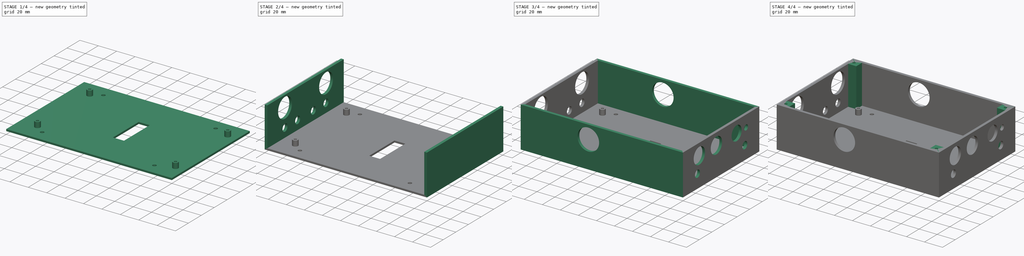
[diagram: build sequence overview — one tinted view per stage of 4, left to right]
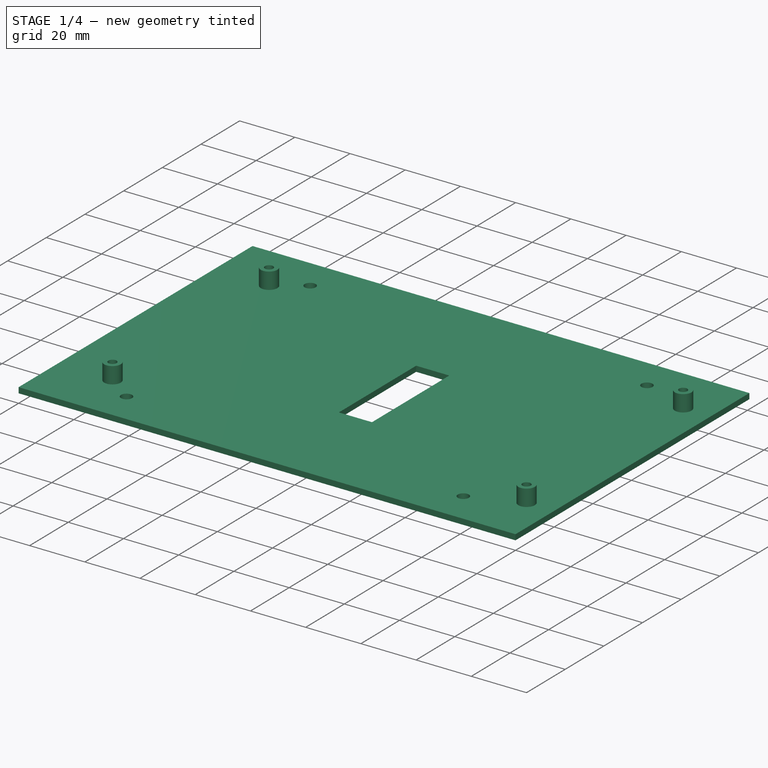
[diagram: stage 1 of 4 — iso view after this stage's code; geometry added in this stage tinted green]
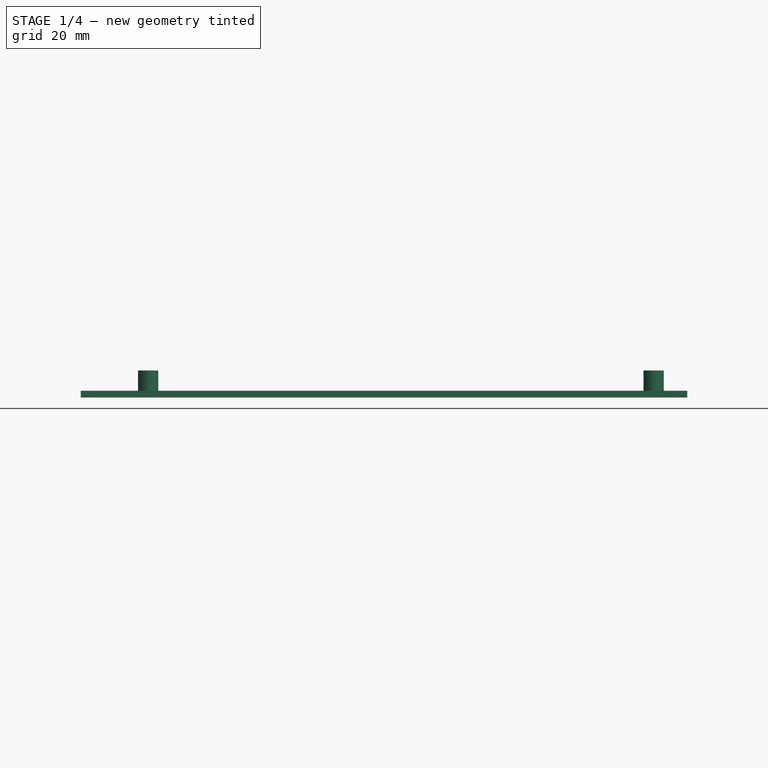
[diagram: stage 1 of 4 — front view after this stage's code; geometry added in this stage tinted green]
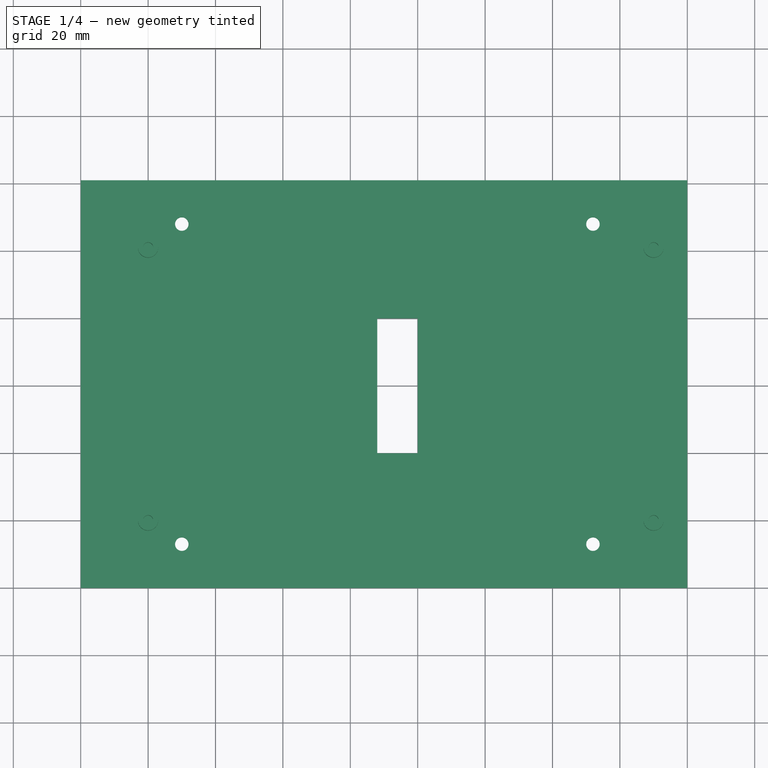
[diagram: stage 1 of 4 — top view after this stage's code; geometry added in this stage tinted green]
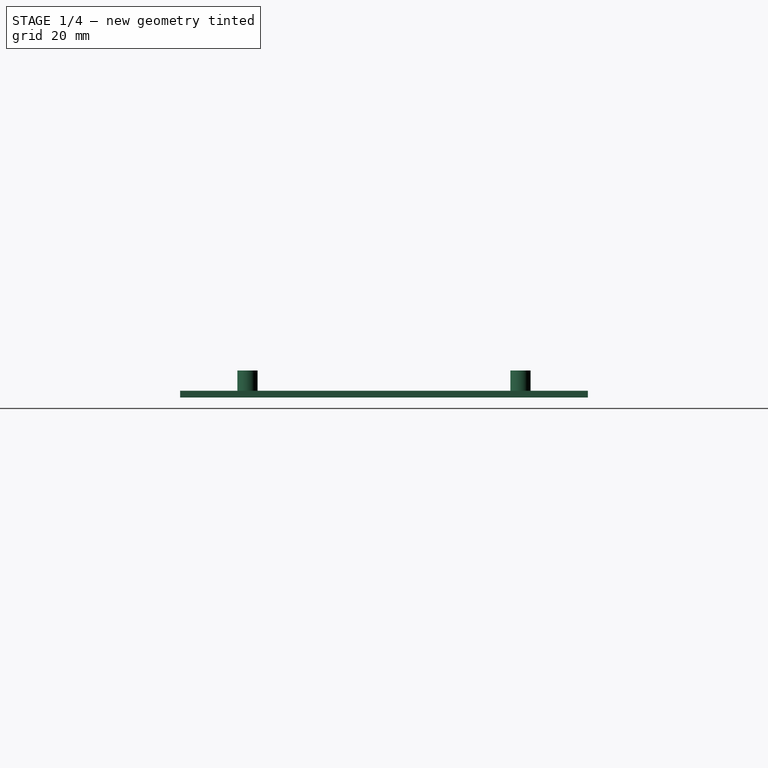
[diagram: stage 1 of 4 — right view after this stage's code; geometry added in this stage tinted green]
FCSTD DOCUMENT  (FreeCAD 0.16R6706 (Git))
Label: Caja_Interior
License: All rights reserved
LicenseURL: http://en.wikipedia.org/wiki/All_rights_reserved
objects: Sketcher::SketchObject×10, PartDesign::Pad×6, PartDesign::Pocket×4
note: 30 computed .brp shape members not serialized (recipe doc carries the construction recipe); baked Part::Feature solids carry a one-line shape summary decoded from their .brp

FEATURE [Sketcher::SketchObject] Sketch  label="Base"
  sketch-geometry (12):
    g0: LineSegment StartX=0 StartY=121 StartZ=0 EndX=180 EndY=121 EndZ=0
    g1: LineSegment StartX=180 StartY=121 StartZ=0 EndX=180 EndY=0 EndZ=0
    g2: LineSegment StartX=180 StartY=0 StartZ=0 EndX=0 EndY=0 EndZ=0
    g3: LineSegment StartX=0 StartY=0 StartZ=0 EndX=0 EndY=121 EndZ=0
    g4: Circle CenterX=30 CenterY=13 CenterZ=0 NormalX=0 NormalY=0 NormalZ=1 Radius=2
    g5: Circle CenterX=152 CenterY=13 CenterZ=0 NormalX=0 NormalY=0 NormalZ=1 Radius=2
    g6: Circle CenterX=30 CenterY=108 CenterZ=0 NormalX=0 NormalY=0 NormalZ=1 Radius=2
    g7: Circle CenterX=152 CenterY=108 CenterZ=0 NormalX=0 NormalY=0 NormalZ=1 Radius=2
    g8: LineSegment StartX=88 StartY=80 StartZ=0 EndX=100 EndY=80 EndZ=0
    g9: LineSegment StartX=100 StartY=80 StartZ=0 EndX=100 EndY=40 EndZ=0
    g10: LineSegment StartX=100 StartY=40 StartZ=0 EndX=88 EndY=40 EndZ=0
    g11: LineSegment StartX=88 StartY=40 StartZ=0 EndX=88 EndY=80 EndZ=0
  constraints (35):
    c: Coincident(g0,g1)
    c: Coincident(g1,g2)
    c: Coincident(g2,g3)
    c: Coincident(g3,g0)
    c: Horizontal(g0)
    c: Horizontal(g2)
    c: Vertical(g1)
    c: Vertical(g3)
    c: DistanceY(g3,g3) = 121
    c: DistanceX(g0,g0) = 180
    c: Coincident(g2,g-1)
    c: Radius(g4) = 2
    c: DistanceY(g-1,g4) = 13
    c: DistanceX(g4,g-1) = -30
    c: Radius(g5) = 2
    c: DistanceX(g5,g4) = -122
    c: DistanceY(g-1,g5) = 13
    c: Radius(g6) = 2
    c: DistanceY(g4,g6) = 95
    c: DistanceX(g-1,g6) = 30
    c: Radius(g7) = 2
    c: DistanceY(g6,g7) = 0
    c: DistanceX(g7,g6) = -122
    c: Coincident(g8,g9)
    c: Coincident(g9,g10)
    c: Coincident(g10,g11)
    c: Coincident(g11,g8)
    c: Horizontal(g8)
    c: Horizontal(g10)
    c: Vertical(g9)
    c: Vertical(g11)
    c: DistanceX(g8,g8) = 12
    c: DistanceY(g11,g11) = 40
    c: DistanceX(g-1,g10) = 88
    c: DistanceY(g-1,g10) = 40
FEATURE [PartDesign::Pad] Pad
  Length = 2
  Length2 = 100
  Sketch = -> Sketch
  Type = 0
FEATURE [Sketcher::SketchObject] Sketch001  label="Soportes_Placa"
  Placement = pos=(0,0,2) rot=(0,0,1;0rad)
  Support = -> Pad [Face14]
  sketch-geometry (8):
    g0: Circle CenterX=20 CenterY=20 CenterZ=0 NormalX=0 NormalY=0 NormalZ=1 Radius=1.5
    g1: Circle CenterX=20 CenterY=20 CenterZ=0 NormalX=0 NormalY=0 NormalZ=1 Radius=3
    g2: Circle CenterX=20 CenterY=101 CenterZ=0 NormalX=0 NormalY=0 NormalZ=1 Radius=1.5
    g3: Circle CenterX=20 CenterY=101 CenterZ=0 NormalX=0 NormalY=0 NormalZ=1 Radius=3
    g4: Circle CenterX=170 CenterY=20 CenterZ=0 NormalX=0 NormalY=0 NormalZ=1 Radius=1.5
    g5: Circle CenterX=170 CenterY=20 CenterZ=0 NormalX=0 NormalY=0 NormalZ=1 Radius=3
    g6: Circle CenterX=170 CenterY=101 CenterZ=0 NormalX=0 NormalY=0 NormalZ=1 Radius=1.5
    g7: Circle CenterX=170 CenterY=101 CenterZ=0 NormalX=0 NormalY=0 NormalZ=1 Radius=3
  constraints (16):
    c: Radius(g0) = 1.5
    c: Radius(g1) = 3
    c: Coincident(g0,g1)
    c: DistanceY(g-1,g0) = 20
    c: DistanceX(g0,g-1) = -20
    c: Radius(g2) = 1.5
    c: Radius(g3) = 3
    c: Coincident(g3,g2)
    c: DistanceY(g0,g2) = 81
    c: Radius(g4) = 1.5
    c: Radius(g5) = 3
    c: Coincident(g5,g4)
    c: DistanceX(g0,g4) = 150
    c: Radius(g6) = 1.5
    c: Radius(g7) = 3
    c: Coincident(g7,g6)
FEATURE [PartDesign::Pad] Pad001
  Length = 6
  Length2 = 100
  Sketch = -> Sketch001
  Type = 0
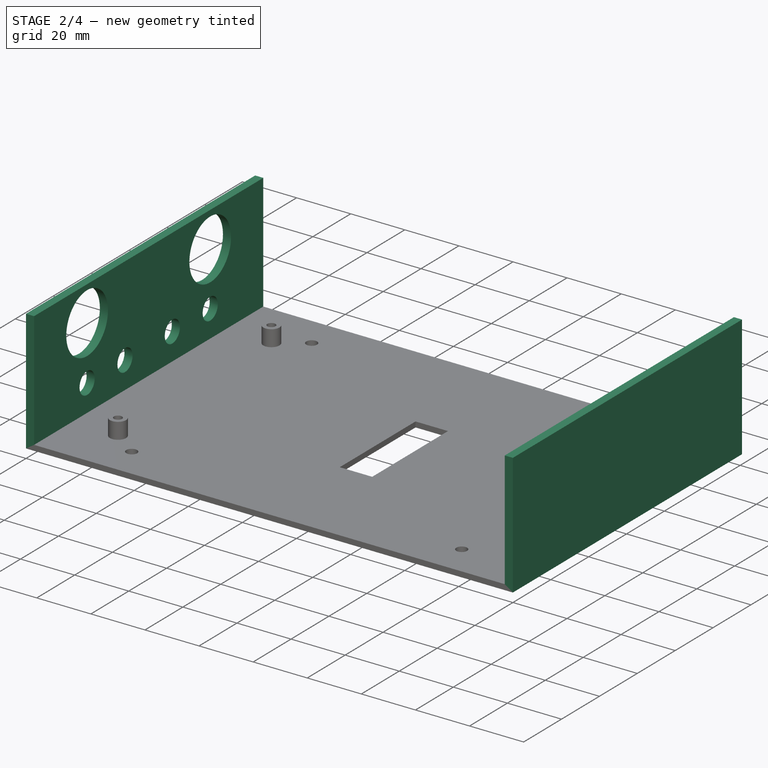
[diagram: stage 2 of 4 — iso view after this stage's code; geometry added in this stage tinted green]
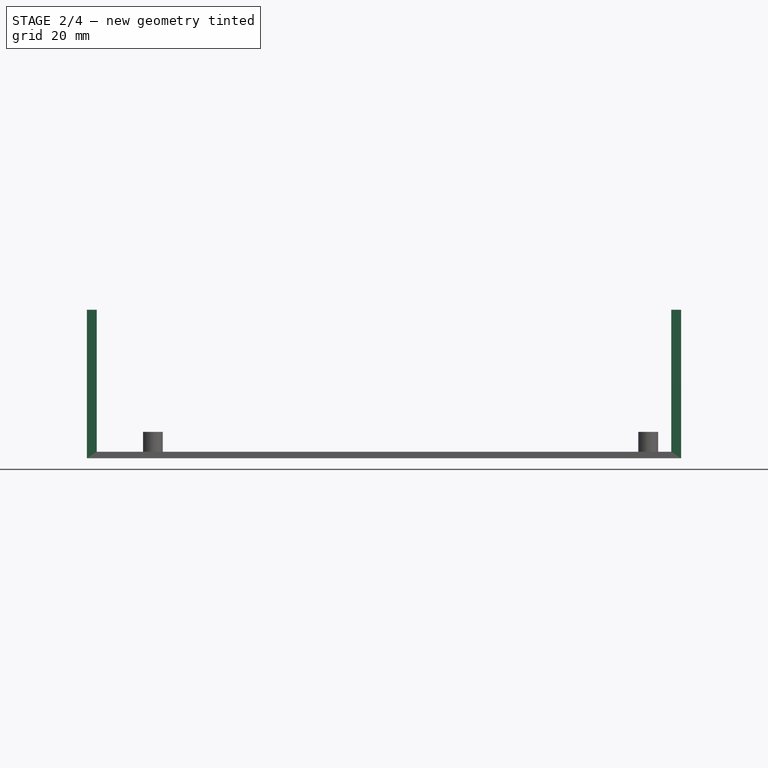
[diagram: stage 2 of 4 — front view after this stage's code; geometry added in this stage tinted green]
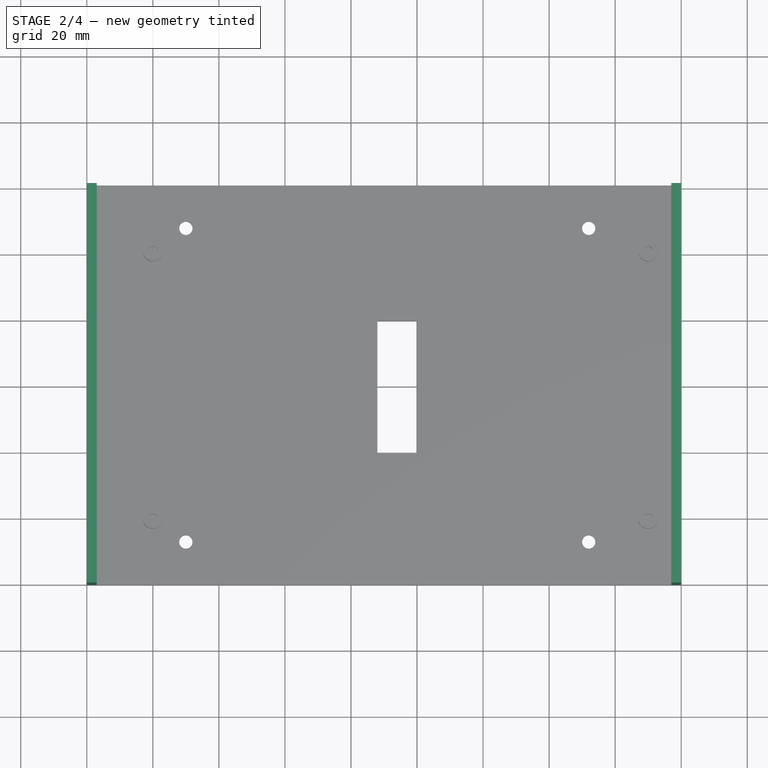
[diagram: stage 2 of 4 — top view after this stage's code; geometry added in this stage tinted green]
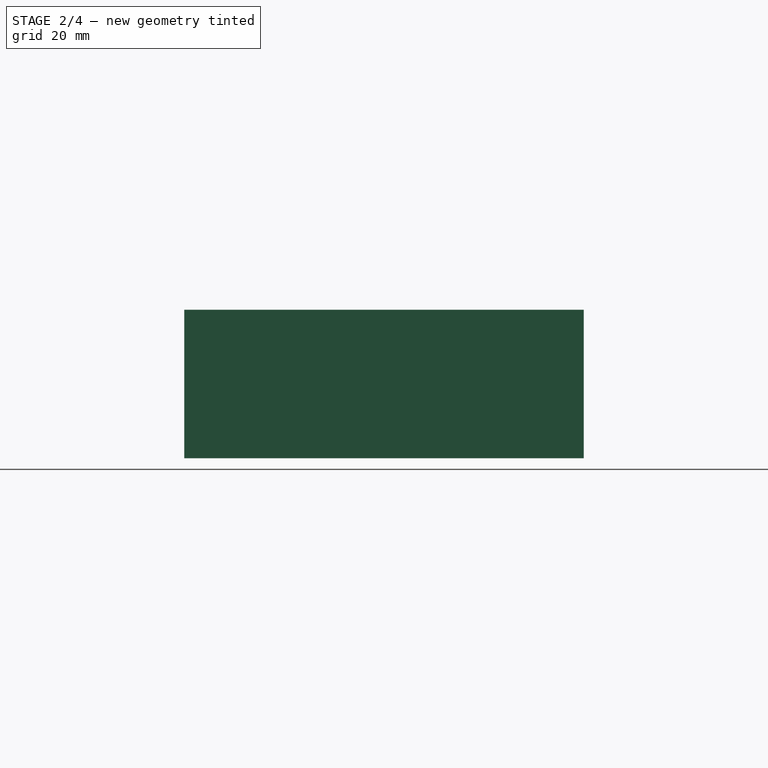
[diagram: stage 2 of 4 — right view after this stage's code; geometry added in this stage tinted green]
FEATURE [Sketcher::SketchObject] Sketch002  label="Frontal"
  Placement = pos=(0,0,2) rot=(0,0,1;0rad)
  Support = -> Pad001 [Face5]
  sketch-geometry (4):
    g0: LineSegment StartX=0 StartY=121 StartZ=0 EndX=3 EndY=121 EndZ=0
    g1: LineSegment StartX=3 StartY=121 StartZ=0 EndX=3 EndY=0 EndZ=0
    g2: LineSegment StartX=3 StartY=0 StartZ=0 EndX=0 EndY=0 EndZ=0
    g3: LineSegment StartX=0 StartY=0 StartZ=0 EndX=0 EndY=121 EndZ=0
  constraints (11):
    c: Coincident(g0,g1)
    c: Coincident(g1,g2)
    c: Coincident(g2,g3)
    c: Coincident(g3,g0)
    c: Horizontal(g0)
    c: Horizontal(g2)
    c: Vertical(g1)
    c: Vertical(g3)
    c: DistanceY(g3,g3) = 121
    c: Coincident(g-1,g2)
    c: DistanceX(g2,g2) = 3
FEATURE [PartDesign::Pad] Pad002
  Length = 43
  Length2 = 100
  Sketch = -> Sketch002
  Type = 0
FEATURE [Sketcher::SketchObject] Sketch003  label="Frontal_Componentes"
  Placement = pos=(0,0,0) rot=(0.57735,-0.57735,-0.57735;2.0944rad)
  Support = -> Pad002 [Face32]
  sketch-geometry (6):
    g0: Circle CenterX=-28 CenterY=32 CenterZ=0 NormalX=0 NormalY=0 NormalZ=1 Radius=11
    g1: Circle CenterX=-93 CenterY=31.799 CenterZ=0 NormalX=0 NormalY=0 NormalZ=1 Radius=11
    g2: Circle CenterX=-28 CenterY=12 CenterZ=0 NormalX=0 NormalY=0 NormalZ=1 Radius=4
    g3: Circle CenterX=-48 CenterY=12 CenterZ=0 NormalX=0 NormalY=0 NormalZ=1 Radius=4
    g4: Circle CenterX=-93 CenterY=12 CenterZ=0 NormalX=0 NormalY=0 NormalZ=1 Radius=4
    g5: Circle CenterX=-73 CenterY=12 CenterZ=0 NormalX=0 NormalY=0 NormalZ=1 Radius=4
  constraints (14):
    c: Radius(g0) = 11
    c: DistanceX(g0,g-1) = 28
    c: DistanceY(g-1,g0) = 32
    c: Radius(g1) = 11
    c: DistanceX(g1,g-1) = 93
    c: Radius(g2) = 4
    c: DistanceY(g-1,g2) = 12
    c: Radius(g3) = 4
    c: DistanceX(g3,g2) = 20
    c: Radius(g4) = 4
    c: DistanceY(g-1,g4) = 12
    c: Radius(g5) = 4
    c: DistanceX(g4,g5) = 20
    c: DistanceY(g-1,g5) = 12
FEATURE [PartDesign::Pocket] Pocket
  Length = 5
  Sketch = -> Sketch003
  Type = 0
FEATURE [Sketcher::SketchObject] Sketch004  label="Trasera"
  Placement = pos=(0,0,2) rot=(0,0,1;0rad)
  Support = -> Pocket [Face16]
  sketch-geometry (4):
    g0: LineSegment StartX=177 StartY=121 StartZ=0 EndX=180 EndY=121 EndZ=0
    g1: LineSegment StartX=180 StartY=121 StartZ=0 EndX=180 EndY=0 EndZ=0
    g2: LineSegment StartX=180 StartY=0 StartZ=0 EndX=177 EndY=0 EndZ=0
    g3: LineSegment StartX=177 StartY=0 StartZ=0 EndX=177 EndY=121 EndZ=0
  constraints (11):
    c: Coincident(g0,g1)
    c: Coincident(g1,g2)
    c: Coincident(g2,g3)
    c: Coincident(g3,g0)
    c: Horizontal(g0)
    c: Horizontal(g2)
    c: Vertical(g1)
    c: Vertical(g3)
    c: DistanceY(g1,g1) = 121
    c: DistanceX(g2,g2) = 3
    c: DistanceX(g1,g-1) = -180
FEATURE [PartDesign::Pad] Pad003
  Length = 43
  Length2 = 100
  Sketch = -> Sketch004
  Type = 0
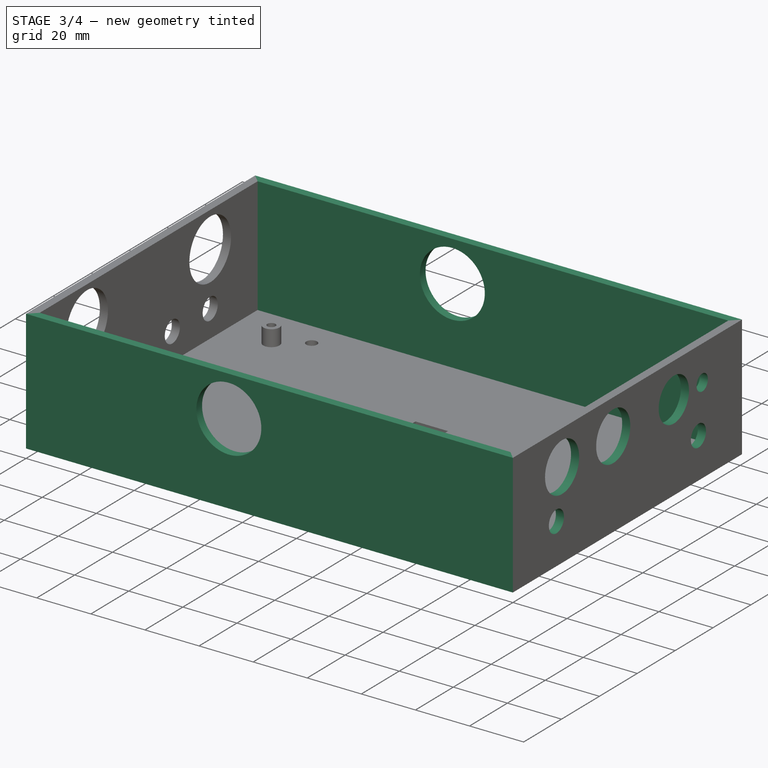
[diagram: stage 3 of 4 — iso view after this stage's code; geometry added in this stage tinted green]
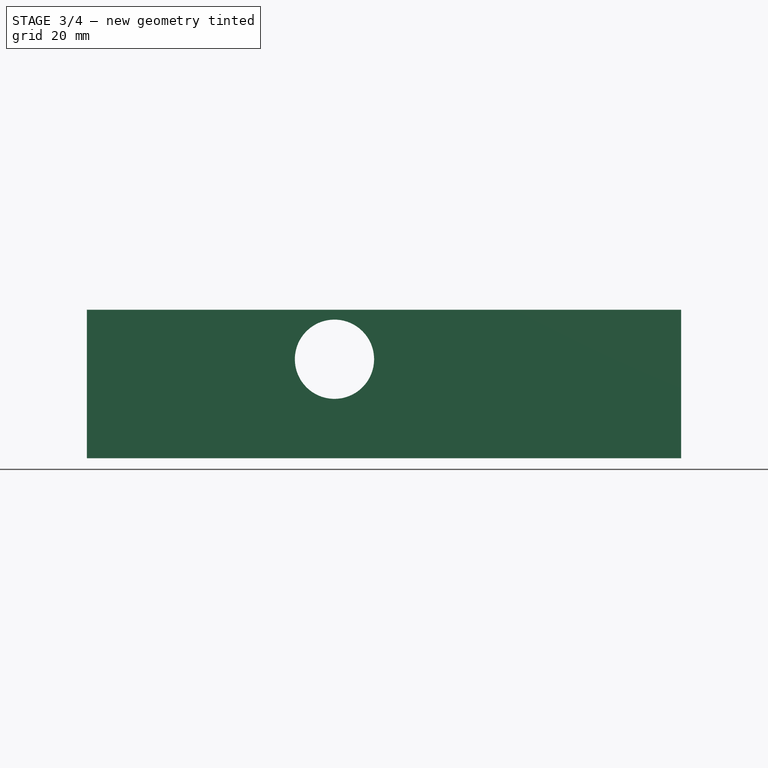
[diagram: stage 3 of 4 — front view after this stage's code; geometry added in this stage tinted green]
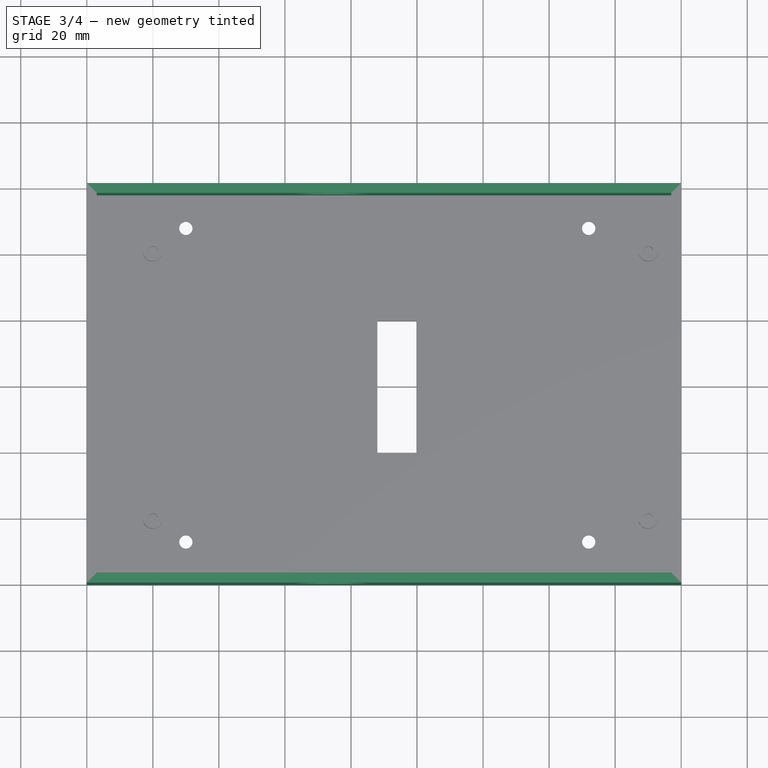
[diagram: stage 3 of 4 — top view after this stage's code; geometry added in this stage tinted green]
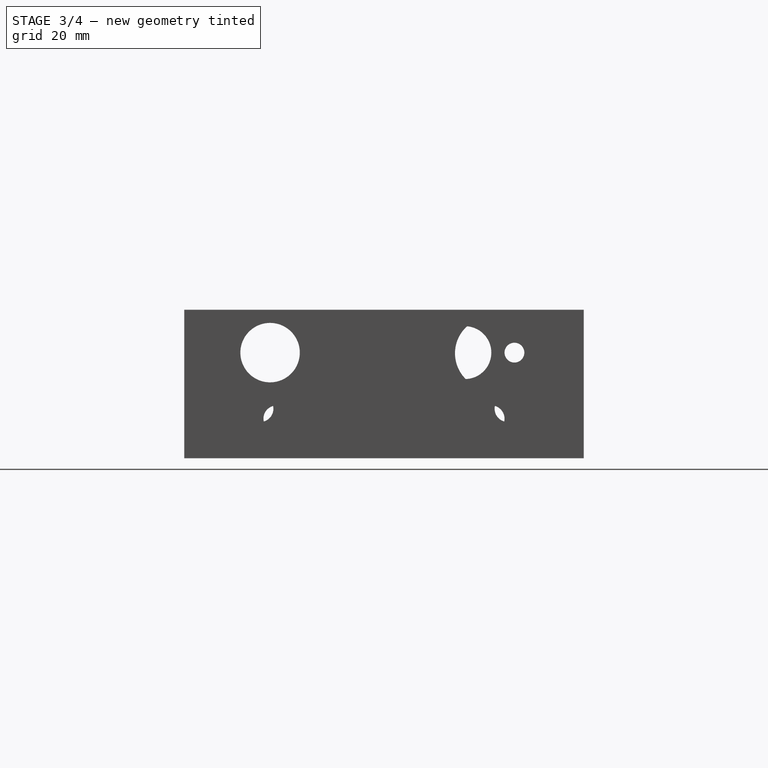
[diagram: stage 3 of 4 — right view after this stage's code; geometry added in this stage tinted green]
FEATURE [Sketcher::SketchObject] Sketch005  label="Trasera_Componentes"
  Placement = pos=(180,0,0) rot=(0.57735,0.57735,0.57735;2.0944rad)
  Support = -> Pad003 [Face39]
  sketch-geometry (6):
    g0: Circle CenterX=85 CenterY=32 CenterZ=0 NormalX=0 NormalY=0 NormalZ=1 Radius=8
    g1: Circle CenterX=26 CenterY=32 CenterZ=0 NormalX=0 NormalY=0 NormalZ=1 Radius=9
    g2: Circle CenterX=53 CenterY=32 CenterZ=0 NormalX=0 NormalY=0 NormalZ=1 Radius=9
    g3: Circle CenterX=23 CenterY=15 CenterZ=0 NormalX=0 NormalY=0 NormalZ=1 Radius=4
    g4: Circle CenterX=98 CenterY=15 CenterZ=0 NormalX=0 NormalY=0 NormalZ=1 Radius=4
    g5: Circle CenterX=100 CenterY=32 CenterZ=0 NormalX=0 NormalY=0 NormalZ=1 Radius=3
  constraints (15):
    c: Radius(g0) = 8
    c: DistanceY(g-1,g0) = 32
    c: DistanceX(g0,g-1) = -85
    c: Radius(g1) = 9
    c: DistanceX(g1,g-1) = -26
    c: Radius(g2) = 9
    c: Radius(g3) = 4
    c: DistanceY(g-1,g3) = 15
    c: DistanceX(g-1,g3) = 23
    c: DistanceY(g-1,g1) = 32
    c: Radius(g4) = 4
    c: DistanceX(g-1,g4) = 98
    c: Radius(g5) = 3
    c: DistanceY(g5,g0) = 0
    c: DistanceX(g0,g5) = 15
FEATURE [PartDesign::Pocket] Pocket001
  Length = 3
  Sketch = -> Sketch005
  Type = 0
FEATURE [Sketcher::SketchObject] Sketch006  label="Laterales"
  Placement = pos=(0,0,2) rot=(0,0,1;0rad)
  Support = -> Pocket001 [Face16]
  sketch-geometry (8):
    g0: LineSegment StartX=3 StartY=3 StartZ=0 EndX=177 EndY=3 EndZ=0
    g1: LineSegment StartX=177 StartY=3 StartZ=0 EndX=177 EndY=0 EndZ=0
    g2: LineSegment StartX=177 StartY=0 StartZ=0 EndX=3 EndY=0 EndZ=0
    g3: LineSegment StartX=3 StartY=0 StartZ=0 EndX=3 EndY=3 EndZ=0
    g4: LineSegment StartX=3 StartY=121 StartZ=0 EndX=177 EndY=121 EndZ=0
    g5: LineSegment StartX=177 StartY=121 StartZ=0 EndX=177 EndY=118 EndZ=0
    g6: LineSegment StartX=177 StartY=118 StartZ=0 EndX=3 EndY=118 EndZ=0
    g7: LineSegment StartX=3 StartY=118 StartZ=0 EndX=3 EndY=121 EndZ=0
  constraints (22):
    c: Coincident(g0,g1)
    c: Coincident(g1,g2)
    c: Coincident(g2,g3)
    c: Coincident(g3,g0)
    c: Horizontal(g0)
    c: Horizontal(g2)
    c: Vertical(g1)
    c: Vertical(g3)
    c: DistanceY(g1,g1) = 3
    c: DistanceX(g0,g0) = 174
    c: DistanceX(g2,g-1) = -3
    c: Coincident(g4,g5)
    c: Coincident(g5,g6)
    c: Coincident(g6,g7)
    c: Coincident(g7,g4)
    c: Horizontal(g4)
    c: Horizontal(g6)
    c: Vertical(g5)
    c: Vertical(g7)
    c: DistanceY(g5,g5) = 3
    c: DistanceX(g4,g4) = 174
    c: DistanceY(g-1,g6) = 118
FEATURE [PartDesign::Pad] Pad004
  Length = 43
  Length2 = 100
  Sketch = -> Sketch006
  Type = 0
FEATURE [Sketcher::SketchObject] Sketch007  label="Motores"
  Placement = pos=(0,121,0) rot=(0,0.707107,0.707107;3.14159rad)
  Support = -> Pad004 [Face45]
  sketch-geometry (1):
    g0: Circle CenterX=-75 CenterY=30 CenterZ=0 NormalX=0 NormalY=0 NormalZ=1 Radius=12
  constraints (3):
    c: Radius(g0) = 12
    c: DistanceY(g-1,g0) = 30
    c: DistanceX(g-1,g0) = -75
FEATURE [PartDesign::Pocket] Pocket002
  Length = 130
  Sketch = -> Sketch007
  Type = 0
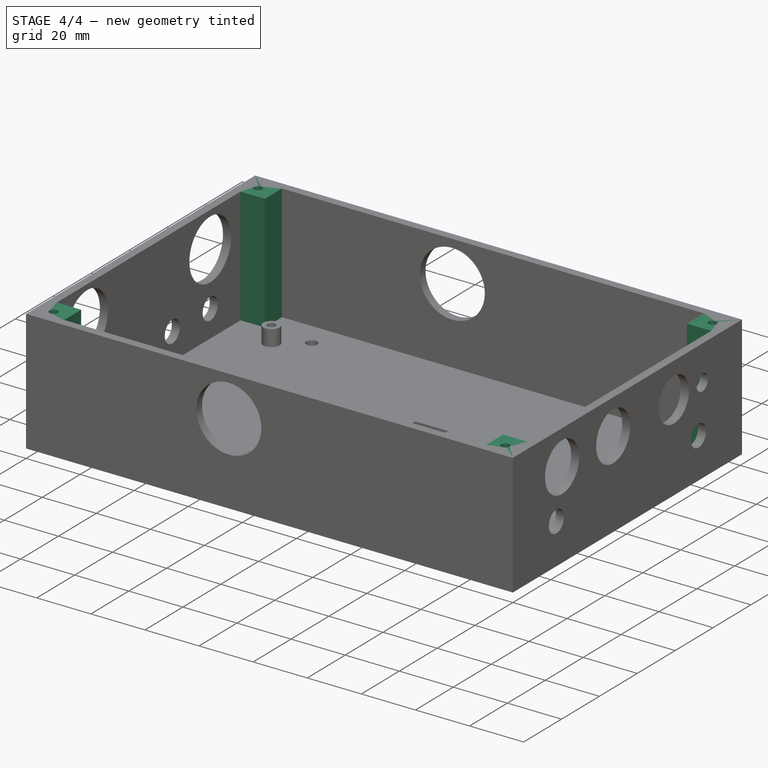
[diagram: stage 4 of 4 — iso view after this stage's code; geometry added in this stage tinted green]
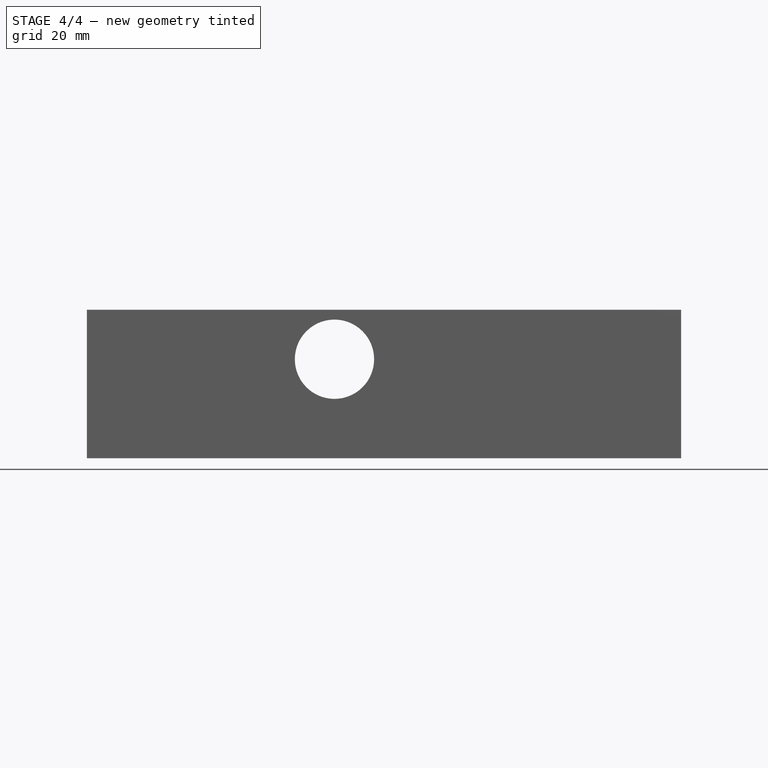
[diagram: stage 4 of 4 — front view after this stage's code; geometry added in this stage tinted green]
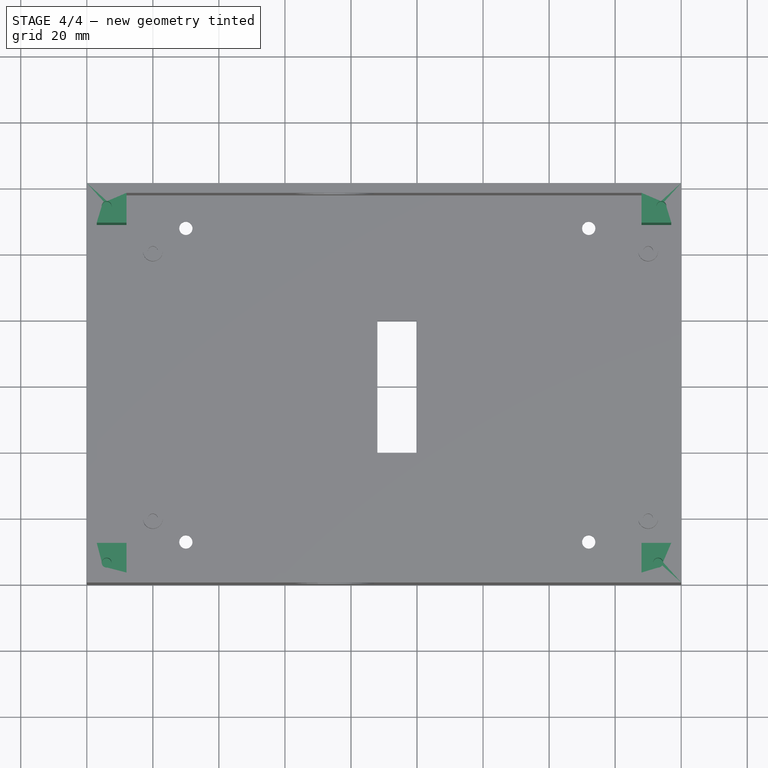
[diagram: stage 4 of 4 — top view after this stage's code; geometry added in this stage tinted green]
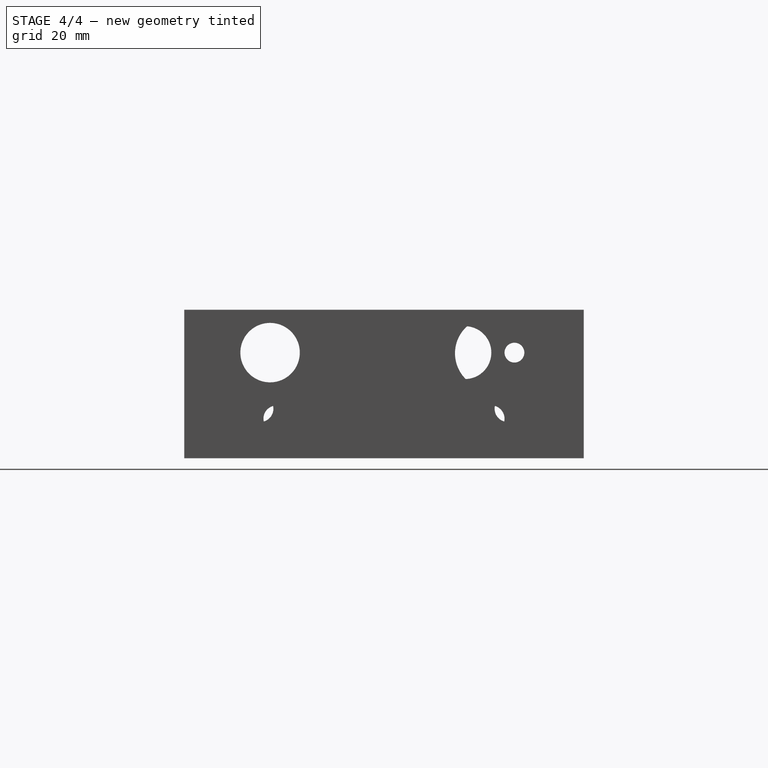
[diagram: stage 4 of 4 — right view after this stage's code; geometry added in this stage tinted green]
FEATURE [Sketcher::SketchObject] Sketch008  label="Columnas_Fijacion_Tapa"
  Placement = pos=(0,0,2) rot=(0,0,1;0rad)
  Support = -> Pocket002 [Face29]
  sketch-geometry (16):
    g0: LineSegment StartX=0 StartY=12 StartZ=0 EndX=12 EndY=12 EndZ=0
    g1: LineSegment StartX=12 StartY=12 StartZ=0 EndX=12 EndY=0 EndZ=0
    g2: LineSegment StartX=12 StartY=0 StartZ=0 EndX=0 EndY=0 EndZ=0
    g3: LineSegment StartX=0 StartY=0 StartZ=0 EndX=0 EndY=12 EndZ=0
    g4: LineSegment StartX=0 StartY=121 StartZ=0 EndX=12 EndY=121 EndZ=0
    g5: LineSegment StartX=12 StartY=121 StartZ=0 EndX=12 EndY=109 EndZ=0
    g6: LineSegment StartX=12 StartY=109 StartZ=0 EndX=0 EndY=109 EndZ=0
    g7: LineSegment StartX=0 StartY=109 StartZ=0 EndX=0 EndY=121 EndZ=0
    g8: LineSegment StartX=168 StartY=121 StartZ=0 EndX=180 EndY=121 EndZ=0
    g9: LineSegment StartX=180 StartY=121 StartZ=0 EndX=180 EndY=109 EndZ=0
    g10: LineSegment StartX=180 StartY=109 StartZ=0 EndX=168 EndY=109 EndZ=0
    g11: LineSegment StartX=168 StartY=109 StartZ=0 EndX=168 EndY=121 EndZ=0
    g12: LineSegment StartX=168 StartY=12 StartZ=0 EndX=180 EndY=12 EndZ=0
    g13: LineSegment StartX=180 StartY=12 StartZ=0 EndX=180 EndY=0 EndZ=0
    g14: LineSegment StartX=180 StartY=0 StartZ=0 EndX=168 EndY=0 EndZ=0
    g15: LineSegment StartX=168 StartY=0 StartZ=0 EndX=168 EndY=12 EndZ=0
  constraints (48):
    c: Coincident(g0,g1)
    c: Coincident(g1,g2)
    c: Coincident(g2,g3)
    c: Coincident(g3,g0)
    c: Horizontal(g0)
    c: Horizontal(g2)
    c: Vertical(g1)
    c: Vertical(g3)
    c: DistanceX(g0,g0) = 12
    c: DistanceY(g3,g3) = 12
    c: DistanceX(g2,g-1) = 0
    c: DistanceY(g-1,g2) = 0
    c: Coincident(g4,g5)
    c: Coincident(g5,g6)
    c: Coincident(g6,g7)
    c: Coincident(g7,g4)
    c: Horizontal(g4)
    c: Horizontal(g6)
    c: Vertical(g5)
    c: Vertical(g7)
    c: DistanceX(g4,g4) = 12
    c: DistanceY(g7,g7) = 12
    c: DistanceX(g6,g-1) = 0
    c: DistanceY(g-1,g6) = 109
    c: Coincident(g8,g9)
    c: Coincident(g9,g10)
    c: Coincident(g10,g11)
    c: Coincident(g11,g8)
    c: Horizontal(g8)
    c: Horizontal(g10)
    c: Vertical(g9)
    c: Vertical(g11)
    c: DistanceX(g8,g8) = 12
    c: DistanceY(g11,g11) = 12
    c: DistanceY(g6,g10) = 0
    c: DistanceX(g6,g10) = 168
    c: Coincident(g12,g13)
    c: Coincident(g13,g14)
    c: Coincident(g14,g15)
    c: Coincident(g15,g12)
    c: Horizontal(g12)
    c: Horizontal(g14)
    c: Vertical(g13)
    c: Vertical(g15)
    c: DistanceX(g12,g12) = 12
    c: DistanceY(g15,g15) = 12
    c: DistanceY(g-1,g14) = 0
    c: DistanceX(g-1,g14) = 168
FEATURE [PartDesign::Pad] Pad005
  Length = 43
  Length2 = 100
  Sketch = -> Sketch008
  Type = 0
FEATURE [Sketcher::SketchObject] Sketch009  label="Columnas_Fijacion_Tapa_tornillos"
  Placement = pos=(0,0,45) rot=(0,0,1;0rad)
  Support = -> Pad005 [Face57]
  sketch-geometry (4):
    g0: Circle CenterX=6 CenterY=6 CenterZ=0 NormalX=0 NormalY=0 NormalZ=1 Radius=1.5
    g1: Circle CenterX=173 CenterY=6 CenterZ=0 NormalX=0 NormalY=0 NormalZ=1 Radius=1.5
    g2: Circle CenterX=6 CenterY=114 CenterZ=0 NormalX=0 NormalY=0 NormalZ=1 Radius=1.5
    g3: Circle CenterX=174 CenterY=114 CenterZ=0 NormalX=0 NormalY=0 NormalZ=1 Radius=1.5
  constraints (12):
    c: Radius(g0) = 1.5
    c: DistanceX(g0,g-1) = -6
    c: DistanceY(g-1,g0) = 6
    c: Radius(g1) = 1.5
    c: DistanceX(g-1,g1) = 173
    c: DistanceY(g1,g-1) = -6
    c: Radius(g2) = 1.5
    c: DistanceX(g2,g-1) = -6
    c: DistanceY(g0,g2) = 108
    c: Radius(g3) = 1.5
    c: DistanceY(g2,g3) = 0
    c: DistanceX(g2,g3) = 168
FEATURE [PartDesign::Pocket] Pocket003
  Length = 10
  Sketch = -> Sketch009
  Type = 0
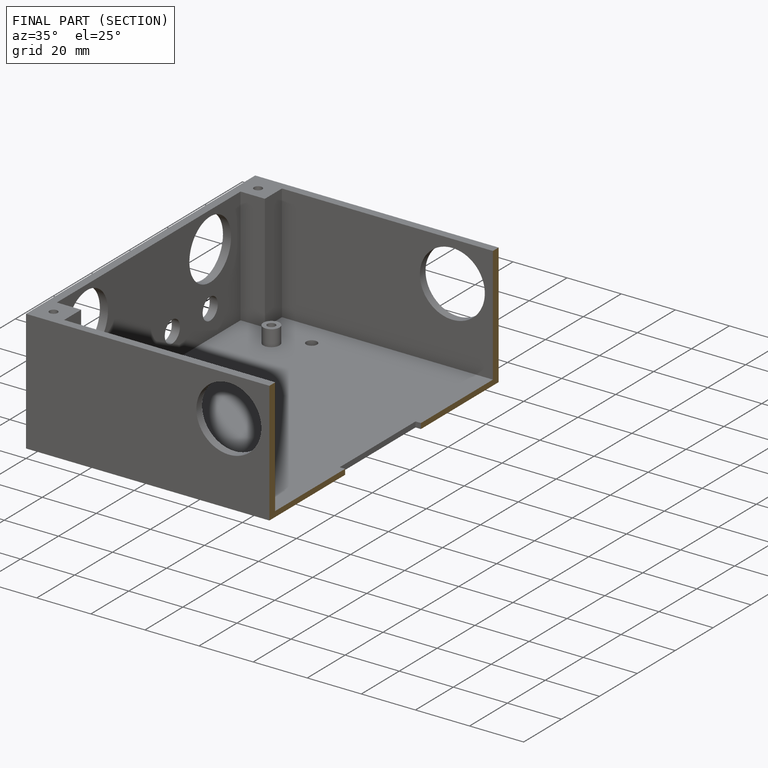
[diagram: finished part — half-section view (interior)]
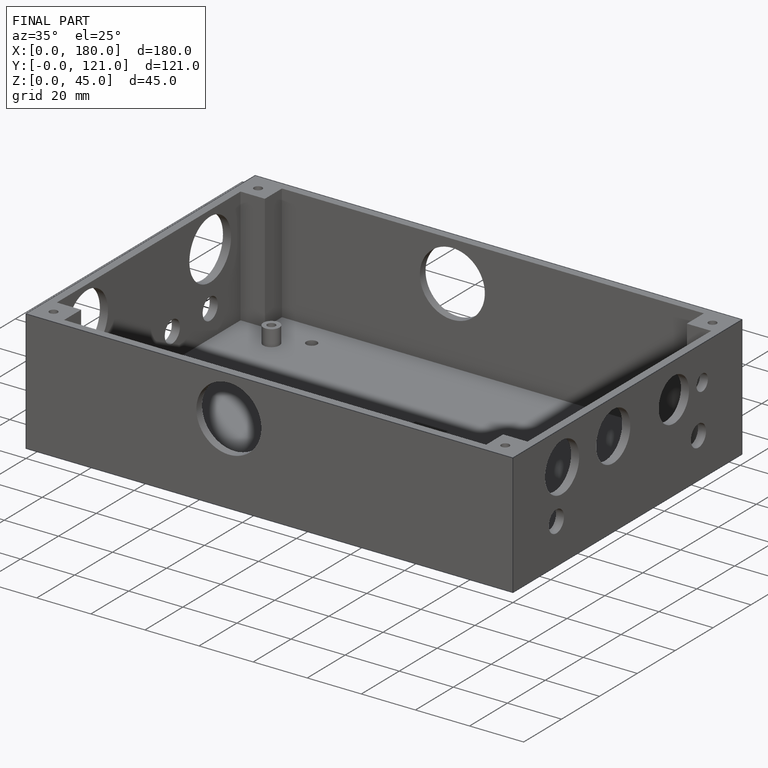
[diagram: finished part — iso view with bounding-box wireframe]
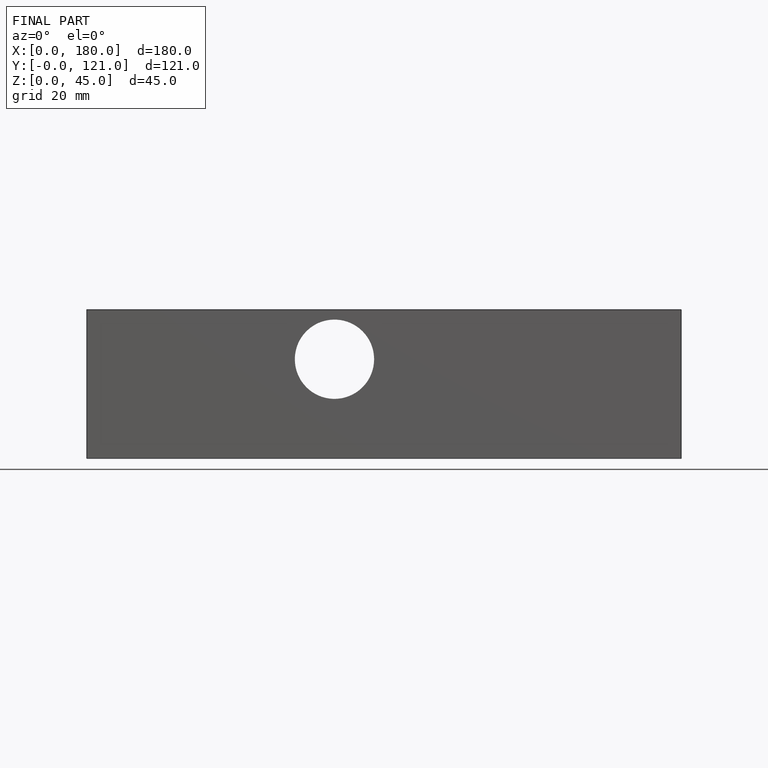
[diagram: finished part — front view with bounding-box wireframe]
